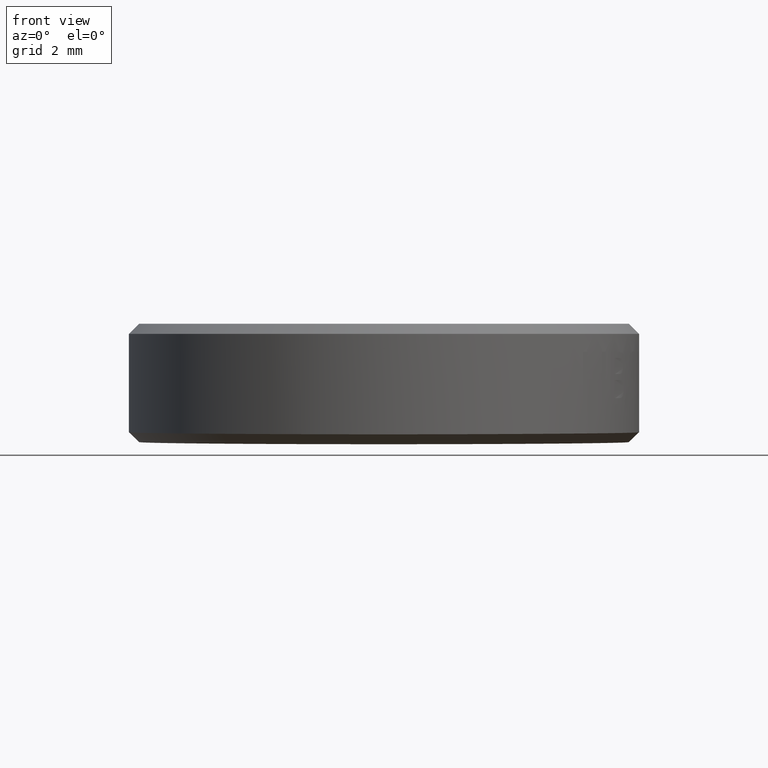
[diagram: clean part render]
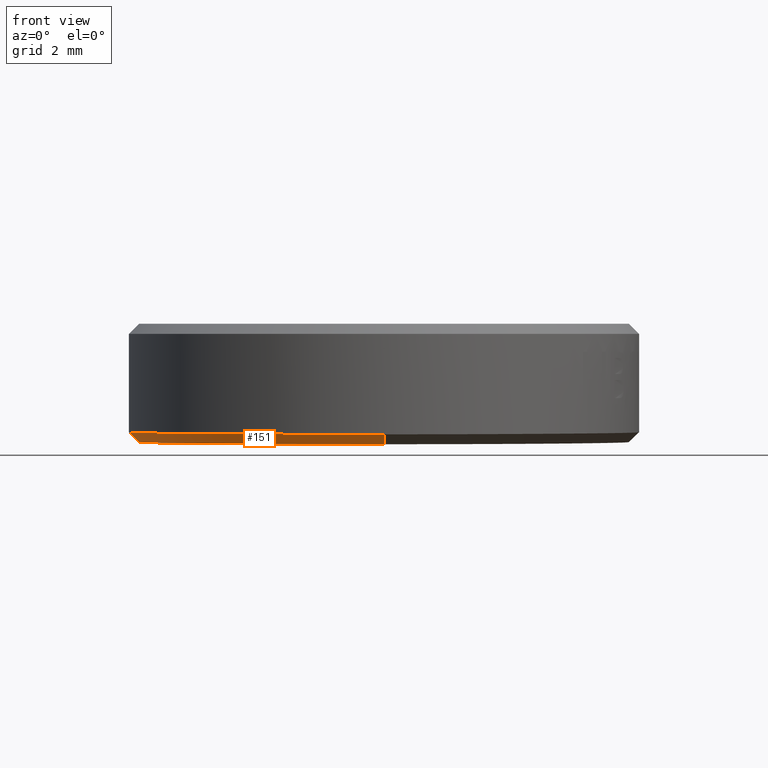
[diagram: same view with one face highlighted and labeled with its STEP entity id]
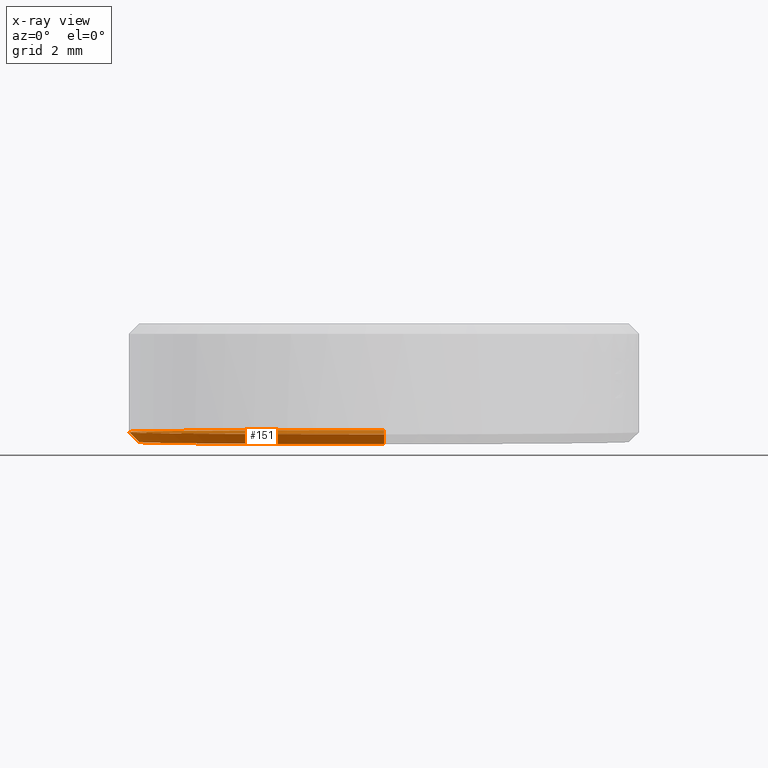
[diagram: x-ray of the same camera — body ghosted, the highlighted face saturated]
A machine part, front view. The second image highlights one B-rep face of the part: STEP entity #151.
The next image is the same camera in x-ray: the body ghosted, the highlighted face saturated — about 25% of this face is hidden behind the body in this view.
In plain terms, the highlighted face is a freeform B-spline surface patch.
Its self-contained STEP definition (entity closure, byte-faithful):
#94 = VERTEX_POINT ( 'NONE', #1037 ) ;
#109 = ORIENTED_EDGE ( 'NONE', *, *, #155, .F. ) ;
#145 = ORIENTED_EDGE ( 'NONE', *, *, #161, .F. ) ;
#146 = VERTEX_POINT ( 'NONE', #1188 ) ;
#149 = VERTEX_POINT ( 'NONE', #1186 ) ;
#150 = VERTEX_POINT ( 'NONE', #1149 ) ;
#151 = ADVANCED_FACE ( 'NONE', ( #1163 ), #1245, .T. ) ;
#152 = ORIENTED_EDGE ( 'NONE', *, *, #154, .T. ) ;
#153 = ORIENTED_EDGE ( 'NONE', *, *, #178, .F. ) ;
#154 = EDGE_CURVE ( 'NONE', #149, #146, #1255, .T. ) ;
#155 = EDGE_CURVE ( 'NONE', #150, #94, #1252, .T. ) ;
#156 = EDGE_CURVE ( 'NONE', #176, #146, #1294, .T. ) ;
#160 = ORIENTED_EDGE ( 'NONE', *, *, #156, .F. ) ;
#161 = EDGE_CURVE ( 'NONE', #94, #176, #1292, .T. ) ;
#175 = EDGE_LOOP ( 'NONE', ( #153, #152, #160, #145, #109 ) ) ;
#176 = VERTEX_POINT ( 'NONE', #1291 ) ;
#178 = EDGE_CURVE ( 'NONE', #149, #150, #1307, .T. ) ;
#1037 = CARTESIAN_POINT ( 'NONE',  ( 1.125339124336679200E-015, -6.349999999999999600, -1.252153404871644300 ) ) ;
#1149 = CARTESIAN_POINT ( 'NONE',  ( -6.350000000000000500, -6.396792817664476200E-015, -1.198900718868443700 ) ) ;
#1163 = FACE_OUTER_BOUND ( 'NONE', #175, .T. ) ;
#1186 = CARTESIAN_POINT ( 'NONE',  ( 1.052680027515084200E-015, 6.349999999999999600, -1.145648032865243000 ) ) ;
#1188 = CARTESIAN_POINT ( 'NONE',  ( 2.081668171172168500E-014, 6.104297290509324000, -1.391312994119007900 ) ) ;
#1224 = CARTESIAN_POINT ( 'NONE',  ( 3.183658244865332800, -5.443945974347642800, -1.492092986306853900 ) ) ;
#1225 = CARTESIAN_POINT ( 'NONE',  ( 1.599780738022384300, -6.100009519233969600, -1.497818366125408300 ) ) ;
#1226 = CARTESIAN_POINT ( 'NONE',  ( 1.387778780781445700E-014, -6.100009519233963400, -1.497818366125408500 ) ) ;
#1227 = CARTESIAN_POINT ( 'NONE',  ( 1.084202172485504400E-015, -6.350000000000000500, -1.252153404871644300 ) ) ;
#1228 = CARTESIAN_POINT ( 'NONE',  ( -1.664757834151763300, -6.349999999999995200, -1.252153404871644100 ) ) ;
#1229 = CARTESIAN_POINT ( 'NONE',  ( -3.312966507652066000, -5.667289613417086300, -1.246428025053089000 ) ) ;
#1230 = CARTESIAN_POINT ( 'NONE',  ( -5.667289613417110200, -3.312966507652046900, -1.226684083462319800 ) ) ;
#1231 = CARTESIAN_POINT ( 'NONE',  ( -6.350000000000002300, -1.664757832229614200, -1.212861793846567600 ) ) ;
#1232 = CARTESIAN_POINT ( 'NONE',  ( -6.350000000000000500, 1.664757832229588600, -1.184939643890319700 ) ) ;
#1233 = CARTESIAN_POINT ( 'NONE',  ( -5.667289613417092500, 3.312966507652058000, -1.171117354274567200 ) ) ;
#1234 = CARTESIAN_POINT ( 'NONE',  ( -3.312966507652068700, 5.667289613417090700, -1.151373412683798400 ) ) ;
#1235 = CARTESIAN_POINT ( 'NONE',  ( -1.664757834151748600, 6.349999999999997000, -1.145648032865243000 ) ) ;
#1236 = CARTESIAN_POINT ( 'NONE',  ( 1.664757834151750600, 6.350000000000004100, -1.145648032865243000 ) ) ;
#1237 = CARTESIAN_POINT ( 'NONE',  ( 3.312966507652062500, 5.667289613417095100, -1.151373412683798200 ) ) ;
#1238 = CARTESIAN_POINT ( 'NONE',  ( 5.667289613417082700, 3.312966507652069100, -1.171117354274567400 ) ) ;
#1239 = CARTESIAN_POINT ( 'NONE',  ( 6.349999999999998800, 1.664757832229596800, -1.184939643890319000 ) ) ;
#1240 = CARTESIAN_POINT ( 'NONE',  ( 6.350000000000004100, -1.664757832229595100, -1.212861793846568200 ) ) ;
#1241 = CARTESIAN_POINT ( 'NONE',  ( 5.667289613417092500, -3.312966507652062900, -1.226684083462319800 ) ) ;
#1242 = CARTESIAN_POINT ( 'NONE',  ( 3.312966507652065100, -5.667289613417090700, -1.246428025053089000 ) ) ;
#1243 = CARTESIAN_POINT ( 'NONE',  ( 1.664757834151765500, -6.350000000000005900, -1.252153404871644500 ) ) ;
#1244 = CARTESIAN_POINT ( 'NONE',  ( 1.084202172485504400E-015, -6.350000000000000500, -1.252153404871644300 ) ) ;
#1245 = B_SPLINE_SURFACE_WITH_KNOTS ( 'NONE', 1, 3, ( 
 ( #1244, #1243, #1242, #1241, #1240, #1239, #1238, #1237, #1236, #1235, #1234, #1233, #1232, #1231, #1230, #1229, #1228, #1227 ),
 ( #1226, #1225, #1224, #1272, #1271, #1270, #1269, #1268, #1267, #1266, #1265, #1264, #1263, #1262, #1261, #1260, #1259, #1258 ) ),
 .UNSPECIFIED., .F., .T., .F.,
 ( 2, 2 ),
 ( 4, 2, 2, 2, 2, 2, 2, 2, 4 ),
 ( 0.0000000000000000000, 1.000000000000000000 ),
 ( 0.0000000000000000000, 0.7853981633974482800, 1.570796326794896600, 2.356194490192344800, 3.141592653589793100, 3.926990816987241400, 4.712388980384689700, 5.497787143782138000, 6.283185307179586200 ),
 .UNSPECIFIED. ) ;
#1247 = CARTESIAN_POINT ( 'NONE',  ( -6.283622752603098300, -1.043733549046127900, -1.207499172675128100 ) ) ;
#1248 = CARTESIAN_POINT ( 'NONE',  ( -6.350000000000000500, -0.5291898079813711600, -1.203338636770888500 ) ) ;
#1251 = CARTESIAN_POINT ( 'NONE',  ( -6.350000000000000500, -6.396792817664476200E-015, -1.198900718868443700 ) ) ;
#1252 = B_SPLINE_CURVE_WITH_KNOTS ( 'NONE', 3,
 ( #1251, #1248, #1247, #1305, #1304, #1303, #1302, #1301, #1300, #1299, #1298, #1297, #1296, #1295 ),
 .UNSPECIFIED., .F., .F.,
 ( 4, 2, 2, 2, 2, 2, 4 ),
 ( 0.7500000000000000000, 0.7812500000000000000, 0.8125000000000000000, 0.8437500000000000000, 0.8750000000000000000, 0.9375000000000000000, 1.000000000000000000 ),
 .UNSPECIFIED. ) ;
#1253 = CARTESIAN_POINT ( 'NONE',  ( 2.081668171172168500E-014, 6.104297290509324000, -1.391312994119007900 ) ) ;
#1254 = CARTESIAN_POINT ( 'NONE',  ( 1.052680027515084200E-015, 6.349999999999999600, -1.145648032865243000 ) ) ;
#1255 = B_SPLINE_CURVE_WITH_KNOTS ( 'NONE', 1,
 ( #1254, #1253 ),
 .UNSPECIFIED., .F., .F.,
 ( 2, 2 ),
 ( 0.0000000000000000000, 1.000000000000000000 ),
 .UNSPECIFIED. ) ;
#1258 = CARTESIAN_POINT ( 'NONE',  ( 1.387778780781445700E-014, -6.100009519233963400, -1.497818366125408500 ) ) ;
#1259 = CARTESIAN_POINT ( 'NONE',  ( -1.599780738022356500, -6.100009519233956300, -1.497818366125408800 ) ) ;
#1260 = CARTESIAN_POINT ( 'NONE',  ( -3.183658244865309200, -5.443945974347634800, -1.492092986306854200 ) ) ;
#1261 = CARTESIAN_POINT ( 'NONE',  ( -5.446089859985325400, -3.181514359227624000, -1.472349044716083900 ) ) ;
#1262 = CARTESIAN_POINT ( 'NONE',  ( -6.102153404871630800, -1.597636850384466900, -1.458526755099665000 ) ) ;
#1263 = CARTESIAN_POINT ( 'NONE',  ( -6.102153404871625500, 1.601924621659806200, -1.430604605144751400 ) ) ;
#1264 = CARTESIAN_POINT ( 'NONE',  ( -5.446089859985311100, 3.185802130502990900, -1.416782315528331700 ) ) ;
#1265 = CARTESIAN_POINT ( 'NONE',  ( -3.183658244865309700, 5.448233745623001700, -1.397038373937563100 ) ) ;
#1266 = CARTESIAN_POINT ( 'NONE',  ( -1.599780738022340600, 6.104297290509322200, -1.391312994119007900 ) ) ;
#1267 = CARTESIAN_POINT ( 'NONE',  ( 1.599780738022368300, 6.104297290509325800, -1.391312994119007900 ) ) ;
#1268 = CARTESIAN_POINT ( 'NONE',  ( 3.183658244865334600, 5.448233745623005200, -1.397038373937562700 ) ) ;
#1269 = CARTESIAN_POINT ( 'NONE',  ( 5.446089859985328000, 3.185802130503001500, -1.416782315528332100 ) ) ;
#1270 = CARTESIAN_POINT ( 'NONE',  ( 6.102153404871656600, 1.601924621659814000, -1.430604605144751400 ) ) ;
#1271 = CARTESIAN_POINT ( 'NONE',  ( 6.102153404871654800, -1.597636850384455800, -1.458526755099665000 ) ) ;
#1272 = CARTESIAN_POINT ( 'NONE',  ( 5.446089859985329800, -3.181514359227644000, -1.472349044716084100 ) ) ;
#1273 = CARTESIAN_POINT ( 'NONE',  ( 2.081668171172168500E-014, 6.104297290509324000, -1.391312994119007900 ) ) ;
#1274 = CARTESIAN_POINT ( 'NONE',  ( -0.7992637068269758900, 6.104169837505133400, -1.391314106384524900 ) ) ;
#1275 = CARTESIAN_POINT ( 'NONE',  ( -1.578233315842700000, 5.947691721517982100, -1.392679670214891100 ) ) ;
#1276 = CARTESIAN_POINT ( 'NONE',  ( -3.088064434429339800, 5.322035362724340000, -1.398139690540526300 ) ) ;
#1277 = CARTESIAN_POINT ( 'NONE',  ( -3.749799388440342900, 4.882272847816764700, -1.401977439867452700 ) ) ;
#1278 = CARTESIAN_POINT ( 'NONE',  ( -4.879948716410250900, 3.751763028309227400, -1.411843249598441400 ) ) ;
#1279 = CARTESIAN_POINT ( 'NONE',  ( -5.320116672103291800, 3.090301598647614800, -1.417615736043780200 ) ) ;
#1280 = CARTESIAN_POINT ( 'NONE',  ( -5.945322640863613700, 1.580283921399652000, -1.430793460674821200 ) ) ;
#1281 = CARTESIAN_POINT ( 'NONE',  ( -6.102280857876953800, 0.8014075917080205600, -1.437590611429386200 ) ) ;
#1282 = CARTESIAN_POINT ( 'NONE',  ( -6.102025951866275800, -0.7971198204326872500, -1.451540748815030500 ) ) ;
#1283 = CARTESIAN_POINT ( 'NONE',  ( -5.945547835879129800, -1.576089429200225200, -1.458338713603758200 ) ) ;
#1284 = CARTESIAN_POINT ( 'NONE',  ( -5.319891477087789900, -3.085920548296339200, -1.471514810166473000 ) ) ;
#1285 = CARTESIAN_POINT ( 'NONE',  ( -4.880128962008028800, -3.747655502973286500, -1.477289683628457300 ) ) ;
#1286 = CARTESIAN_POINT ( 'NONE',  ( -3.749619142842578700, -4.877804830601981200, -1.487152347394479900 ) ) ;
#1287 = CARTESIAN_POINT ( 'NONE',  ( -3.088157713086074900, -5.317972786639831600, -1.490993634952548100 ) ) ;
#1288 = CARTESIAN_POINT ( 'NONE',  ( -1.578140037185977500, -5.943178755051763000, -1.496449724780867700 ) ) ;
#1289 = CARTESIAN_POINT ( 'NONE',  ( -0.8001878959499241200, -6.099754322044735700, -1.497816139053277600 ) ) ;
#1290 = CARTESIAN_POINT ( 'NONE',  ( 2.081668171172168500E-014, -6.100009519233965200, -1.497818366125408300 ) ) ;
#1291 = CARTESIAN_POINT ( 'NONE',  ( 2.081668171172168500E-014, -6.100009519233965200, -1.497818366125408300 ) ) ;
#1292 = B_SPLINE_CURVE_WITH_KNOTS ( 'NONE', 1,
 ( #1327, #1326 ),
 .UNSPECIFIED., .F., .F.,
 ( 2, 2 ),
 ( 0.0000000000000000000, 1.000000000000000000 ),
 .UNSPECIFIED. ) ;
#1294 = B_SPLINE_CURVE_WITH_KNOTS ( 'NONE', 3,
 ( #1290, #1289, #1288, #1287, #1286, #1285, #1284, #1283, #1282, #1281, #1280, #1279, #1278, #1277, #1276, #1275, #1274, #1273 ),
 .UNSPECIFIED., .F., .F.,
 ( 4, 2, 2, 2, 2, 2, 2, 2, 4 ),
 ( 0.0000000000000000000, 0.06250000000000001400, 0.1250000000000000300, 0.1875000000000000000, 0.2500000000000000000, 0.3124999999999999400, 0.3749999999999999400, 0.4375000000000000000, 0.5000000000000000000 ),
 .UNSPECIFIED. ) ;
#1295 = CARTESIAN_POINT ( 'NONE',  ( 1.125339124336679200E-015, -6.349999999999999600, -1.252153404871644300 ) ) ;
#1296 = CARTESIAN_POINT ( 'NONE',  ( -0.6040464965618568300, -6.350000000000002300, -1.252153793009334000 ) ) ;
#1297 = CARTESIAN_POINT ( 'NONE',  ( -1.267525895873434600, -6.263455164626269500, -1.251044653154200800 ) ) ;
#1298 = CARTESIAN_POINT ( 'NONE',  ( -2.633402115100490300, -5.822601291190862200, -1.246607317458290100 ) ) ;
#1299 = CARTESIAN_POINT ( 'NONE',  ( -3.335992009091277100, -5.466678375410434200, -1.243279121617512800 ) ) ;
#1300 = CARTESIAN_POINT ( 'NONE',  ( -4.306991992804970700, -4.684554275503608700, -1.236622535867112800 ) ) ;
#1301 = CARTESIAN_POINT ( 'NONE',  ( -4.616262276818577700, -4.382894098279638900, -1.234126291952107400 ) ) ;
#1302 = CARTESIAN_POINT ( 'NONE',  ( -5.181279952529142600, -3.697833979322530800, -1.228579040125684900 ) ) ;
#1303 = CARTESIAN_POINT ( 'NONE',  ( -5.436966962020688000, -3.314370269459710400, -1.225528032214267200 ) ) ;
#1304 = CARTESIAN_POINT ( 'NONE',  ( -5.867538165171270100, -2.473389558771823500, -1.218871252395022700 ) ) ;
#1305 = CARTESIAN_POINT ( 'NONE',  ( -6.042330288894523200, -2.015822238775930600, -1.215265480487194700 ) ) ;
#1307 = B_SPLINE_CURVE_WITH_KNOTS ( 'NONE', 3,
 ( #1356, #1355, #1354, #1353, #1352, #1351, #1350, #1349, #1348, #1347, #1346, #1345, #1344, #1343 ),
 .UNSPECIFIED., .F., .F.,
 ( 4, 2, 2, 2, 2, 2, 4 ),
 ( 0.5000000000000000000, 0.5625000000000000000, 0.6250000000000000000, 0.6562500000000000000, 0.6875000000000000000, 0.7187500000000000000, 0.7500000000000000000 ),
 .UNSPECIFIED. ) ;
#1326 = CARTESIAN_POINT ( 'NONE',  ( 2.081668171172168500E-014, -6.100009519233965200, -1.497818366125408300 ) ) ;
#1327 = CARTESIAN_POINT ( 'NONE',  ( 1.125339124336679200E-015, -6.349999999999999600, -1.252153404871644300 ) ) ;
#1343 = CARTESIAN_POINT ( 'NONE',  ( -6.350000000000000500, -6.396792817664476200E-015, -1.198900718868443700 ) ) ;
#1344 = CARTESIAN_POINT ( 'NONE',  ( -6.349999999999998800, 0.5291898079813708300, -1.194462800965998800 ) ) ;
#1345 = CARTESIAN_POINT ( 'NONE',  ( -6.283622752607298500, 1.043733549014836700, -1.190302265062023200 ) ) ;
#1346 = CARTESIAN_POINT ( 'NONE',  ( -6.042330288911494500, 2.015822238721942700, -1.182535957250166400 ) ) ;
#1347 = CARTESIAN_POINT ( 'NONE',  ( -5.867538165196791900, 2.473389558709680800, -1.178930185342425000 ) ) ;
#1348 = CARTESIAN_POINT ( 'NONE',  ( -5.436966962063811700, 3.314370269387776300, -1.172273405523320600 ) ) ;
#1349 = CARTESIAN_POINT ( 'NONE',  ( -5.181279952581305400, 3.697833979248943900, -1.169222397611957600 ) ) ;
#1350 = CARTESIAN_POINT ( 'NONE',  ( -4.616262276886220500, 4.382894098207970900, -1.163675145785605400 ) ) ;
#1351 = CARTESIAN_POINT ( 'NONE',  ( -4.306991992879049200, 4.684554275435493400, -1.161178901870616700 ) ) ;
#1352 = CARTESIAN_POINT ( 'NONE',  ( -3.335992009177727100, 5.466678375357678200, -1.154522316120216900 ) ) ;
#1353 = CARTESIAN_POINT ( 'NONE',  ( -2.633402115185475600, 5.822601291154489500, -1.151194120279369000 ) ) ;
#1354 = CARTESIAN_POINT ( 'NONE',  ( -1.267525895931794300, 6.263455164616377000, -1.146756784583178100 ) ) ;
#1355 = CARTESIAN_POINT ( 'NONE',  ( -0.6040464965953292700, 6.350000000000001400, -1.145647644727834500 ) ) ;
#1356 = CARTESIAN_POINT ( 'NONE',  ( 1.052680027515084200E-015, 6.349999999999999600, -1.145648032865243000 ) ) ;